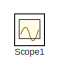
[diagram: root canvas - part 1/3, top center region]
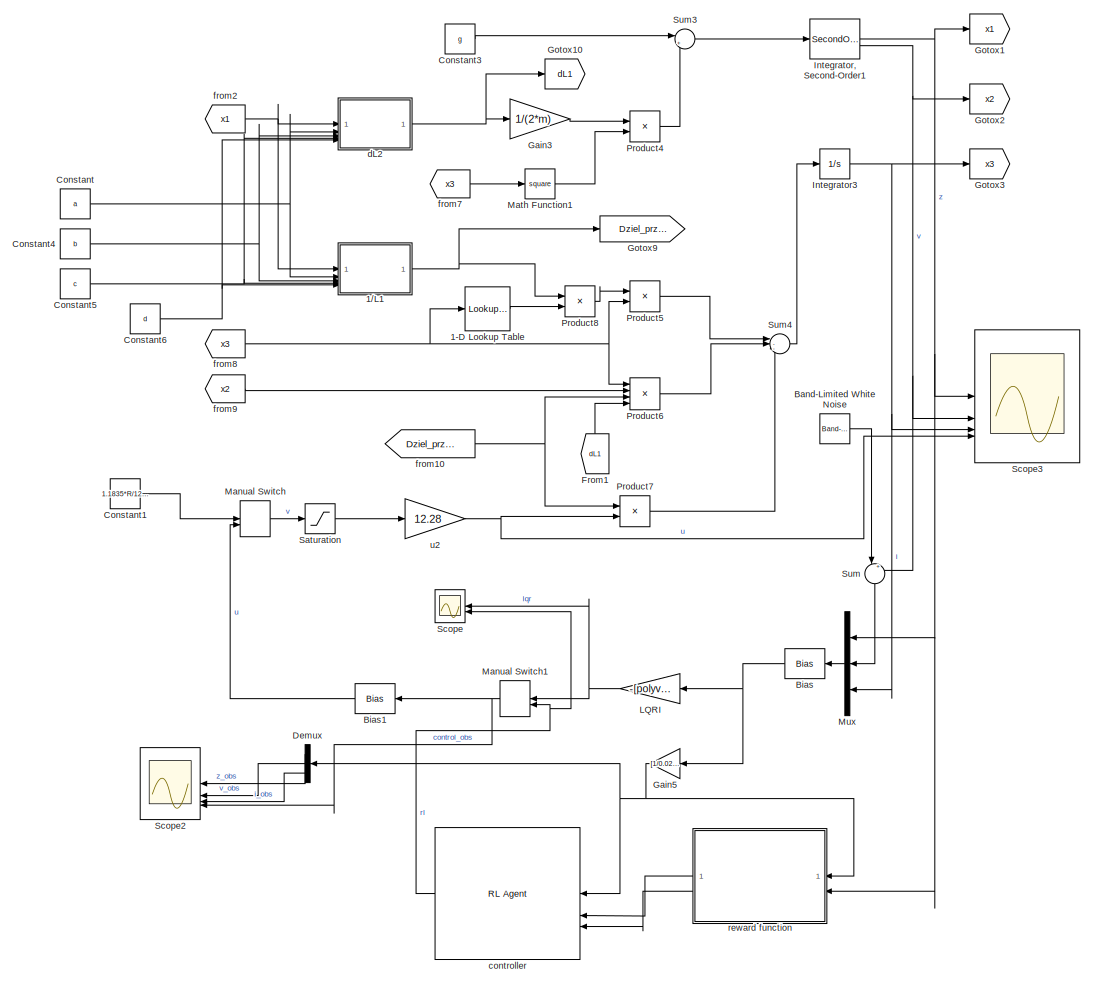
[diagram: root canvas - part 2/3, most of the canvas]
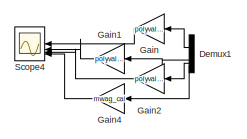
[diagram: root canvas - part 3/3, middle left region]
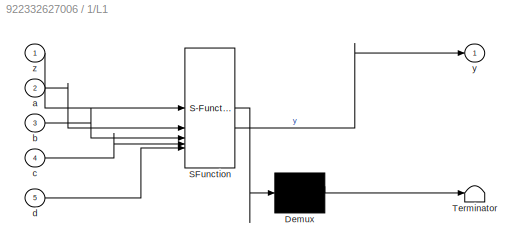
MODEL slx_922332627006
KIND model
CONFIG AbsTol = auto
CONFIG EnableMultiTasking = on
CONFIG FixedStep = auto
CONFIG MaxStep = 1e-3
CONFIG MinStep = auto
CONFIG RelTol = 1e-3
CONFIG SampleTimeConstraint = Unconstrained
CONFIG SolverName = ode45
CONFIG StartTime = 0.0
CONFIG StopTime = 1
BLOCK [Lookup_n-D] 1-D Lookup Table
  BreakpointsForDimension1 = [0.001 0.63 1.372 2.11 2.828]
  InputPortMap = u0
  InternalRulePriority = Speed
  NumberOfTableDimensions = 1
  RndMeth = Simplest
  Table = [5 4.873015873015873 4.475218658892127 4.364928909952607 4.342291371994342]
BLOCK [SubSystem] 1//L1
  ErrorFcn = Stateflow.Translate.translate
  PermitHierarchicalResolution = ExplicitOnly
  SFBlockType = MATLAB Function
  TreatAsAtomicUnit = on
BLOCK [Demux] 1//L1/ Demux 
  Outputs = 1
BLOCK [S-Function] 1//L1/ SFunction 
  EnableBusSupport = on
  FunctionName = sf_sfun
  PortCounts = [5 2]
  SFcnIsStateOwnerBlock = off
  SFunctionDeploymentMode = off
  Tag = Stateflow S-Function 3
BLOCK [Terminator] 1//L1/ Terminator 
BLOCK [Inport] 1//L1/a
  Port = 2
BLOCK [Inport] 1//L1/b
  Port = 3
BLOCK [Inport] 1//L1/c
  Port = 4
BLOCK [Inport] 1//L1/d
  Port = 5
BLOCK [Outport] 1//L1/y
BLOCK [Inport] 1//L1/z
BLOCK [Reference] Band-Limited White Noise  REF=simulink/Sources/Band-Limited
White Noise
  SourceBlock = simulink/Sources/Band-Limited\nWhite Noise
  SourceType = Band-Limited White Noise.
BLOCK [Bias] Bias
  Bias = -[expected_z, 0, 1.1835]
  SaturateOnIntegerOverflow = off
BLOCK [Bias] Bias1
  Bias = 1.1835*R/12.28
  Commented = through
  SaturateOnIntegerOverflow = off
BLOCK [Constant] Constant
  Value = a
BLOCK [Constant] Constant1
  Value = 1.1835*R/12.28
BLOCK [Constant] Constant3
  Value = g
BLOCK [Constant] Constant4
  Value = b
BLOCK [Constant] Constant5
  Value = c
BLOCK [Constant] Constant6
  Value = d
BLOCK [Demux] Demux
  NameLocation = top
  Outputs = 3
BLOCK [Demux] Demux1
  Commented = on
  NameLocation = top
BLOCK [From] From1
  GotoTag = dL1
  NameLocation = right
BLOCK [Gain] Gain
  Commented = on
  Gain = polyval(p_z,expected_z)
  NameLocation = top
BLOCK [Gain] Gain1
  Commented = on
  Gain = polyval(p_v,expected_z)
  NameLocation = top
BLOCK [Gain] Gain2
  Commented = on
  Gain = polyval(p_i,expected_z)
  NameLocation = top
BLOCK [Gain] Gain3
  Gain = 1/(2*m)
BLOCK [Gain] Gain4
  Commented = on
  Gain = mwag_cal
  NameLocation = top
BLOCK [Gain] Gain5
  Gain = [1/0.0212, 2/3, 1/3]
  NameLocation = top
BLOCK [Goto] Gotox1
  GotoTag = x1
BLOCK [Goto] Gotox10
  GotoTag = dL1
BLOCK [Goto] Gotox2
  GotoTag = x2
BLOCK [Goto] Gotox3
  GotoTag = x3
BLOCK [Goto] Gotox9
  GotoTag = Dziel_przez_L
BLOCK [SecondOrderIntegrator] Integrator, Second-Order1
  ICX = initial_x
  LimitX = on
  LowerLimitX = 0
  UpperLimitX = max_x
BLOCK [Integrator] Integrator3
  IgnoreLimit = on
  LimitOutput = on
  LowerSaturationLimit = -999
  UpperSaturationLimit = 999
BLOCK [Gain] LQRI
  Gain = -[polyval(p_z,expected_z) polyval(p_v,expected_z) polyval(p_i,expected_z)]
  Multiplication = Matrix(K*u) (u vector)
BLOCK [ManualSwitch] Manual Switch
  CurrentSetting = 0
BLOCK [ManualSwitch] Manual Switch1
  CurrentSetting = 0
  NameLocation = top
BLOCK [Math] Math Function1
  Operator = square
  SignedPower = on
BLOCK [Mux] Mux
  DisplayOption = bar
  Inputs = 3
BLOCK [Product] Product4
BLOCK [Product] Product5
BLOCK [Product] Product6
  Inputs = 4
BLOCK [Product] Product7
BLOCK [Product] Product8
BLOCK [Saturate] Saturation
  LowerLimit = 0
  UpperLimit = 1
BLOCK [Scope] Scope
  Floating = off
  NameLocation = top
  NumInputPorts = 2
  ScopeSpecificationString = Simulink.scopes.TimeScopeBlockCfg('CurrentConfiguration', extmgr.ConfigurationSet(extmgr.Configuration('Core','General UI',true),extmgr.Configuration('Core','Source UI',true),extmgr.Configuration('Sources','WiredSimulink',true,'DataLoggingVariableName','ScopeData2'),extmgr.Configuration('Visuals','Time Domain',true,'SerializedDisplays',{struct('MinYLimReal','-2.37038','MaxYLimReal','11.75843','YLa...<+1490ch>
BLOCK [Scope] Scope1
  Floating = off
  IOType = viewer
  NumInputPorts = 1
  ScopeSpecificationString = Simulink.scopes.TimeScopeBlockCfg('CurrentConfiguration', extmgr.ConfigurationSet(extmgr.Configuration('Core','General UI',true),extmgr.Configuration('Core','Source UI',true),extmgr.Configuration('Sources','WiredSimulink',true,'DataLoggingVariableName','ScopeData1','DataLoggingSaveFormat','StructureWithTime','DataLoggingLimitDataPoints',true,'DataLoggingDecimation','1','DataLoggingDecimateData',tr...<+1721ch>
BLOCK [Scope] Scope2
  Floating = off
  NameLocation = top
  NumInputPorts = 4
  ScopeSpecificationString = Simulink.scopes.TimeScopeBlockCfg('CurrentConfiguration', extmgr.ConfigurationSet(extmgr.Configuration('Core','General UI',true),extmgr.Configuration('Core','Source UI',true),extmgr.Configuration('Sources','WiredSimulink',true,'DataLoggingVariableName','observationRL','DataLogging',true,'DataLoggingSaveFormat','StructureWithTime'),extmgr.Configuration('Visuals','Time Domain',true,'SerializedDispla...<+3898ch>
BLOCK [Scope] Scope3
  Floating = off
  NumInputPorts = 4
  ScopeSpecificationString = Simulink.scopes.TimeScopeBlockCfg('CurrentConfiguration', extmgr.ConfigurationSet(extmgr.Configuration('Core','General UI',true),extmgr.Configuration('Core','Source UI',true),extmgr.Configuration('Sources','WiredSimulink',true,'DataLogging',true,'DataLoggingSaveFormat','StructureWithTime','DataLoggingDecimation','1','DataLoggingDecimateData',true),extmgr.Configuration('Visuals','Time Domain',true,...<+4048ch>
BLOCK [Scope] Scope4
  Commented = on
  Floating = off
  NameLocation = top
  NumInputPorts = 4
  ScopeSpecificationString = Simulink.scopes.TimeScopeBlockCfg('CurrentConfiguration', extmgr.ConfigurationSet(extmgr.Configuration('Core','General UI',true),extmgr.Configuration('Core','Source UI',true),extmgr.Configuration('Sources','WiredSimulink',true,'DataLoggingVariableName','ScopeData1'),extmgr.Configuration('Visuals','Time Domain',true,'SerializedDisplays',{struct('MinYLimReal','-3.35945','MaxYLimReal','-1.35945','YLa...<+3754ch>
BLOCK [Sum] Sum
  Inputs = |++
  NameLocation = left
BLOCK [Sum] Sum3
  Inputs = |++
BLOCK [Sum] Sum4
  Inputs = |--+
BLOCK [Reference] controller  REF=rllib/RL Agent
  NameLocation = top
  SourceBlock = rllib/RL Agent
  SourceType = RL Agent
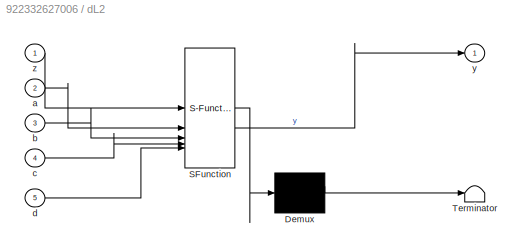
BLOCK [SubSystem] dL2
  ErrorFcn = Stateflow.Translate.translate
  PermitHierarchicalResolution = ExplicitOnly
  SFBlockType = MATLAB Function
  TreatAsAtomicUnit = on
BLOCK [Demux] dL2/ Demux 
  Outputs = 1
BLOCK [S-Function] dL2/ SFunction 
  EnableBusSupport = on
  FunctionName = sf_sfun
  PortCounts = [5 2]
  SFcnIsStateOwnerBlock = off
  SFunctionDeploymentMode = off
  Tag = Stateflow S-Function 4
BLOCK [Terminator] dL2/ Terminator 
BLOCK [Inport] dL2/a
  Port = 2
BLOCK [Inport] dL2/b
  Port = 3
BLOCK [Inport] dL2/c
  Port = 4
BLOCK [Inport] dL2/d
  Port = 5
BLOCK [Outport] dL2/y
BLOCK [Inport] dL2/z
BLOCK [From] from10
  GotoTag = Dziel_przez_L
BLOCK [From] from2
  GotoTag = x1
BLOCK [From] from7
  GotoTag = x3
BLOCK [From] from8
  GotoTag = x3
BLOCK [From] from9
  GotoTag = x2
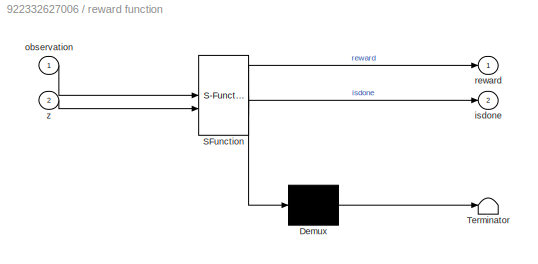
BLOCK [SubSystem] reward function
  ErrorFcn = Stateflow.Translate.translate
  NameLocation = top
  PermitHierarchicalResolution = ExplicitOnly
  SFBlockType = MATLAB Function
  TreatAsAtomicUnit = on
BLOCK [Demux] reward function/ Demux 
  Outputs = 1
BLOCK [S-Function] reward function/ SFunction 
  EnableBusSupport = on
  FunctionName = sf_sfun
  PortCounts = [2 3]
  SFcnIsStateOwnerBlock = off
  SFunctionDeploymentMode = off
  Tag = Stateflow S-Function 2
BLOCK [Terminator] reward function/ Terminator 
BLOCK [Outport] reward function/isdone
  Port = 2
BLOCK [Inport] reward function/observation
BLOCK [Outport] reward function/reward
BLOCK [Inport] reward function/z
  Port = 2
BLOCK [Gain] u2
  Gain = 12.28
  NameLocation = left
LINE 1-D Lookup Table:1 -> Product8:2
NET 1//L1:1 -> Gotox9:1, Product8:1
LINE Band-Limited White Noise:1 -> Sum:1
LINE Bias1:1 -> Manual Switch:2
NET Bias:1 -> Gain5:1, LQRI:1
LINE Constant1:1 -> Manual Switch:1
LINE Constant3:1 -> Sum3:1
NET Constant4:1 -> 1//L1:3, dL2:3
NET Constant5:1 -> 1//L1:4, dL2:4
NET Constant6:1 -> 1//L1:5, dL2:5
NET Constant:1 -> 1//L1:2, dL2:2
LINE Demux1:1 -> Gain:1
LINE Demux1:2 -> Gain1:1
LINE Demux1:3 -> Gain2:1
LINE Demux1:4 -> Gain4:1
LINE Demux:1 -> Scope2:1
LINE Demux:2 -> Scope2:2
LINE Demux:3 -> Scope2:3
LINE From1:1 -> Product6:4
LINE Gain1:1 -> Scope4:2
LINE Gain2:1 -> Scope4:3
LINE Gain3:1 -> Product4:1
LINE Gain4:1 -> Scope4:4
NET Gain5:1 -> Demux:1, controller:1, reward function:1
LINE Gain:1 -> Scope4:1
NET Integrator, Second-Order1:1 -> Gotox1:1, Mux:1, Scope3:1, reward function:2
NET Integrator, Second-Order1:2 -> Gotox2:1, Scope3:2, Sum:2
NET Integrator3:1 -> Gotox3:1, Mux:3, Scope3:3
NET LQRI:1 -> Manual Switch1:1, Scope:1
NET Manual Switch1:1 -> Bias1:1, Scope2:4
LINE Manual Switch:1 -> Saturation:1
LINE Math Function1:1 -> Product4:2
LINE Mux:1 -> Bias:1
LINE Product4:1 -> Sum3:2
LINE Product5:1 -> Sum4:1
LINE Product6:1 -> Sum4:2
LINE Product7:1 -> Sum4:3
LINE Product8:1 -> Product5:1
LINE Saturation:1 -> u2:1
LINE Sum3:1 -> Integrator, Second-Order1:1
LINE Sum4:1 -> Integrator3:1
LINE Sum:1 -> Mux:2
NET controller:1 -> Manual Switch1:2, Scope:2
NET dL2:1 -> Gain3:1, Gotox10:1
NET from10:1 -> Product6:3, Product7:1
NET from2:1 -> 1//L1:1, dL2:1
LINE from7:1 -> Math Function1:1
NET from8:1 -> 1-D Lookup Table:1, Product5:2, Product6:1
LINE from9:1 -> Product6:2
LINE reward function:1 -> controller:2
LINE reward function:2 -> controller:3
NET u2:1 -> Product7:2, Scope3:4
note: NET lines group one-source signal fan-out (src -> all destinations, sorted); 1:1 wires keep LINE
CHART reward function states=1 transitions=1
  STATE_LABEL 'eML_blk_kernel()'
  STATE_LABEL 'SCRIPT:\nfunction [reward,isdone] = reward(observation, z)\n\n% out through the bottom?\nhit =(z < 0.002)||(z >=0210);\nmade_it = abs(observation(1))< 0.005 && abs(observation(2))< 0.005 && abs(observation(3))< 0.005 ;\n\n% calculate reward value\nreward = reward_function(observation, made_it, hit);\n\n% done if either failed (crashed) or succeeded\n%isdone = (made_it || hit_the_top);\n%isdone = made_it;\nisdo...<+7ch>'
CHART 1//L1 states=1 transitions=1
  STATE_LABEL 'eML_blk_kernel()'
  STATE_LABEL 'SCRIPT:\nfunction y = fcn(z,a,b,c,d)\n%#codegen\nz = max(z, 0);\nz = min(z, 30e-3);\ny = 1/(a*exp(b*z) + d*exp(c*z));'
CHART dL2 states=1 transitions=1
  STATE_LABEL 'eML_blk_kernel()'
  STATE_LABEL 'SCRIPT:\nfunction y = fcn(z,a,b,c,d)\n%#codegen\nz = max(z, 0);\nz = min(z, 30e-3);\n%y = - (58297*exp(-(485*z)/2))/8000 - (97407*exp(-(711*z)/500))/625000;\ny = a*b*exp(b*z) + c*d*exp(c*z);'
CHART  states=0 transitions=0
CHART  states=0 transitions=0
CHART  states=0 transitions=0
